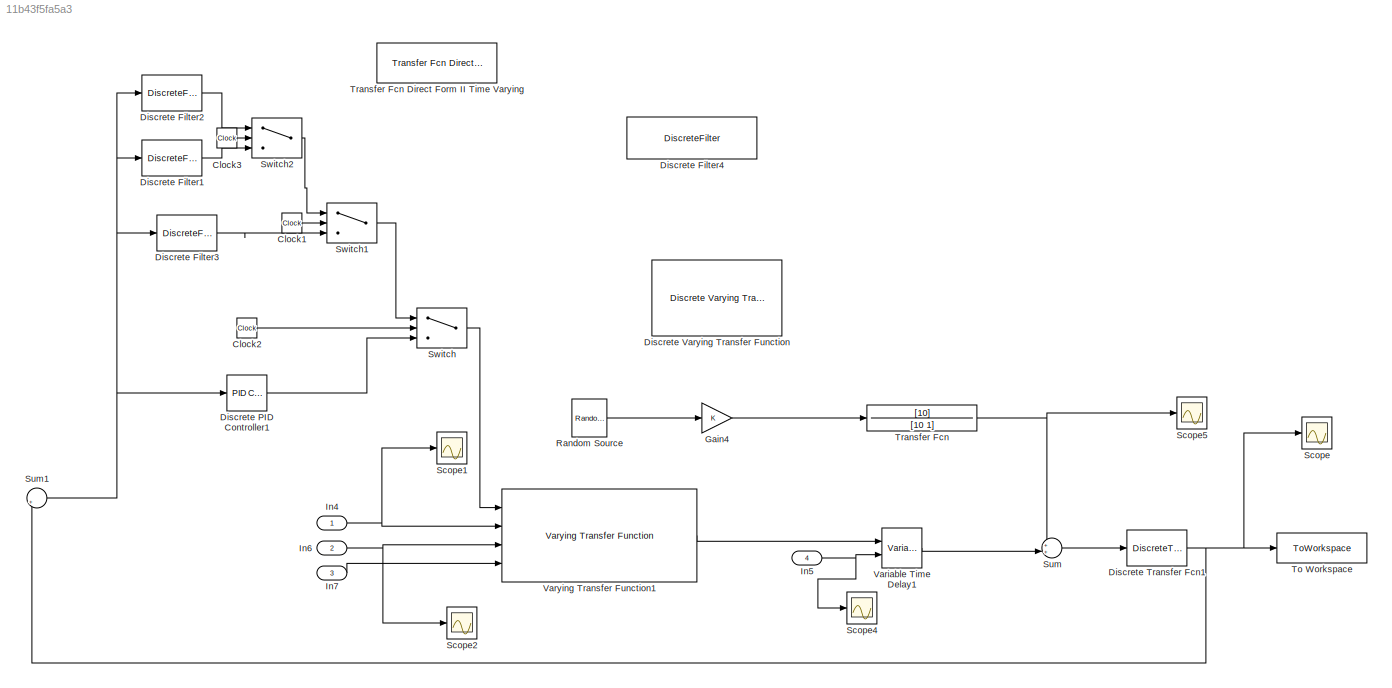
MODEL slx_11b43f5fa5a3
KIND model
CONFIG AbsTol = auto
CONFIG EnableMultiTasking = off
CONFIG FixedStep = 0.01
CONFIG MaxStep = auto
CONFIG MinStep = auto
CONFIG RelTol = 1e-3
CONFIG SampleTimeConstraint = Unconstrained
CONFIG SolverName = VariableStepAuto
CONFIG StartTime = 0.0
CONFIG StopTime = 49000
BLOCK [Clock] Clock1
BLOCK [Clock] Clock2
BLOCK [Clock] Clock3
BLOCK [DiscreteFilter] Discrete Filter1
  Denominator = [1 -0.3 -0.7]
  InputPortMap = u0
  Numerator = [5.0030  -10.2067    5.2115]
  Ports = [1, 1]
BLOCK [DiscreteFilter] Discrete Filter2
  Denominator = [1 -0.3 -0.7]
  InputPortMap = u0
  Numerator = [5.0030  -10.2067    5.2115]
  Ports = [1, 1]
BLOCK [DiscreteFilter] Discrete Filter3
  Denominator = [1 -0.3 -0.7]
  InputPortMap = u0
  Numerator = [5.0030  -10.2067    5.2115]
  Ports = [1, 1]
BLOCK [DiscreteFilter] Discrete Filter4
  Denominator = [1 -1]
  InputPortMap = u0
  Numerator = [12.59 -24.43 11.84]
  Ports = [1, 1]
BLOCK [Reference] Discrete PID Controller1  REF=pid_lib/PID Controller
  Ports = [1, 1]
  SourceBlock = pid_lib/PID Controller
  SourceProductBaseCode = SL
  SourceType = PID 1dof
BLOCK [DiscreteTransferFcn] Discrete Transfer Fcn1
  Denominator = [1]
  InputPortMap = u0
  Ports = [1, 1]
  SampleTime = Ts
BLOCK [Reference] Discrete Varying Transfer Function  REF=cstblocks/Linear Parameter Varying/Discrete Varying Transfer Function
  Ports = [8, 1]
  SourceBlock = cstblocks/Linear Parameter Varying/Discrete Varying Transfer Function
  SourceProductBaseCode = CT
  SourceType = Discrete Varying Transfer Function
BLOCK [Gain] Gain4
BLOCK [Inport] In4
BLOCK [Inport] In5
  Port = 4
BLOCK [Inport] In6
  Port = 2
BLOCK [Inport] In7
  Port = 3
BLOCK [Reference] Random Source  REF=dspsrcs4/Random
Source
  Ports = [0, 1]
  SourceBlock = dspsrcs4/Random\nSource
  SourceProductBaseCode = DS
  SourceType = Random Source
  UserDataPersistent = on
BLOCK [Scope] Scope
  Floating = off
  NumInputPorts = 1
  Ports = [1]
  ScopeSpecificationString = Simulink.scopes.TimeScopeBlockCfg('CurrentConfiguration', extmgr.ConfigurationSet(extmgr.Configuration('Core','General UI',true),extmgr.Configuration('Core','Source UI',true),extmgr.Configuration('Sources','WiredSimulink',true),extmgr.Configuration('Visuals','Time Domain',true,'SerializedDisplays',{struct('MinYLimReal','-12.67273','MaxYLimReal','12.0066','YLabelReal','','MinYLimMag','0.00000','Max...<+1375ch>
BLOCK [Scope] Scope1
  Floating = off
  NumInputPorts = 1
  Ports = [1]
  ScopeSpecificationString = Simulink.scopes.TimeScopeBlockCfg('CurrentConfiguration', extmgr.ConfigurationSet(extmgr.Configuration('Core','General UI',true),extmgr.Configuration('Core','Source UI',true),extmgr.Configuration('Sources','WiredSimulink',true,'DataLoggingVariableName','ScopeData1'),extmgr.Configuration('Visuals','Time Domain',true,'SerializedDisplays',{struct('MinYLimReal','-0.00171','MaxYLimReal','0.01539','YLab...<+1362ch>
BLOCK [Scope] Scope2
  Floating = off
  NumInputPorts = 1
  Ports = [1]
  ScopeSpecificationString = Simulink.scopes.TimeScopeBlockCfg('CurrentConfiguration', extmgr.ConfigurationSet(extmgr.Configuration('Core','General UI',true),extmgr.Configuration('Core','Source UI',true),extmgr.Configuration('Sources','WiredSimulink',true,'DataLoggingVariableName','ScopeData2'),extmgr.Configuration('Visuals','Time Domain',true,'SerializedDisplays',{struct('MinYLimReal','-0.00188','MaxYLimReal','0.01692','YLab...<+1362ch>
BLOCK [Scope] Scope4
  Floating = off
  NumInputPorts = 1
  Ports = [1]
  ScopeSpecificationString = Simulink.scopes.TimeScopeBlockCfg('CurrentConfiguration', extmgr.ConfigurationSet(extmgr.Configuration('Core','General UI',true),extmgr.Configuration('Core','Source UI',true),extmgr.Configuration('Sources','WiredSimulink',true,'DataLoggingVariableName','ScopeData4'),extmgr.Configuration('Visuals','Time Domain',true,'SerializedDisplays',{struct('MinYLimReal','-19.625','MaxYLimReal','176.625','YLabe...<+1360ch>
BLOCK [Scope] Scope5
  Floating = off
  NumInputPorts = 1
  Ports = [1]
  ScopeSpecificationString = Simulink.scopes.TimeScopeBlockCfg('CurrentConfiguration', extmgr.ConfigurationSet(extmgr.Configuration('Core','General UI',true),extmgr.Configuration('Core','Source UI',true),extmgr.Configuration('Sources','WiredSimulink',true,'DataLoggingVariableName','ScopeData2'),extmgr.Configuration('Visuals','Time Domain',true,'SerializedDisplays',{struct('MinYLimReal','-3639.13111','MaxYLimReal','3716.01461'...<+1441ch>
BLOCK [Sum] Sum
  Inputs = ++|
  Ports = [2, 1]
BLOCK [Sum] Sum1
  Inputs = |+-
  Ports = [2, 1]
BLOCK [Switch] Switch
  Criteria = u2 > Threshold
  InputSameDT = off
  SaturateOnIntegerOverflow = off
  Threshold = 10000
BLOCK [Switch] Switch1
  Criteria = u2 > Threshold
  InputSameDT = off
  SaturateOnIntegerOverflow = off
  Threshold = 27000
BLOCK [Switch] Switch2
  Criteria = u2 > Threshold
  InputSameDT = off
  SaturateOnIntegerOverflow = off
  Threshold = 44000
BLOCK [ToWorkspace] To Workspace
  FixptAsFi = on
  MaxDataPoints = inf
  Ports = [1]
  SampleTime = -1
  VariableName = y1
BLOCK [TransferFcn] Transfer Fcn
  Denominator = [10 1]
  Numerator = [10]
BLOCK [Reference] Transfer Fcn Direct Form II Time Varying  REF=simulink/Additional Math
& Discrete/Additional
Discrete/Transfer Fcn
Direct Form II
Time Varying
  Ports = [3, 1]
  SourceBlock = simulink/Additional Math\n& Discrete/Additional\nDiscrete/Transfer Fcn\nDirect Form II\nTime Varying
  SourceProductBaseCode = SL
  SourceType = Transfer Fcn Direct Form II Time Varying
BLOCK [VariableTransportDelay] Variable Time Delay1
  MaximumDelay = 200
  Ports = [2, 1]
BLOCK [Reference] Varying Transfer Function1  REF=cstblocks/Linear Parameter Varying/Varying Transfer Function
  Ports = [4, 1]
  SourceBlock = cstblocks/Linear Parameter Varying/Varying Transfer Function
  SourceProductBaseCode = CT
  SourceType = Varying Transfer Function
LINE Clock1:1 -> Switch1:2
LINE Clock2:1 -> Switch:2
LINE Clock3:1 -> Switch2:2
LINE Discrete Filter1:1 -> Switch2:3
LINE Discrete Filter2:1 -> Switch2:1
LINE Discrete Filter3:1 -> Switch1:3
LINE Discrete PID Controller1:1 -> Switch:3
NET Discrete Transfer Fcn1:1 -> Scope:1, Sum1:2, To Workspace:1
LINE Gain4:1 -> Transfer Fcn:1
NET In4:1 -> Scope1:1, Varying Transfer Function1:2
NET In5:1 -> Scope4:1, Variable Time Delay1:2
NET In6:1 -> Scope2:1, Varying Transfer Function1:3
LINE In7:1 -> Varying Transfer Function1:4
LINE Random Source:1 -> Gain4:1
NET Sum1:1 -> Discrete Filter1:1, Discrete Filter2:1, Discrete Filter3:1, Discrete PID Controller1:1
LINE Sum:1 -> Discrete Transfer Fcn1:1
LINE Switch1:1 -> Switch:1
LINE Switch2:1 -> Switch1:1
LINE Switch:1 -> Varying Transfer Function1:1
NET Transfer Fcn:1 -> Scope5:1, Sum:1
LINE Variable Time Delay1:1 -> Sum:2
LINE Varying Transfer Function1:1 -> Variable Time Delay1:1
note: NET lines group one-source signal fan-out (src -> all destinations, sorted); 1:1 wires keep LINE
